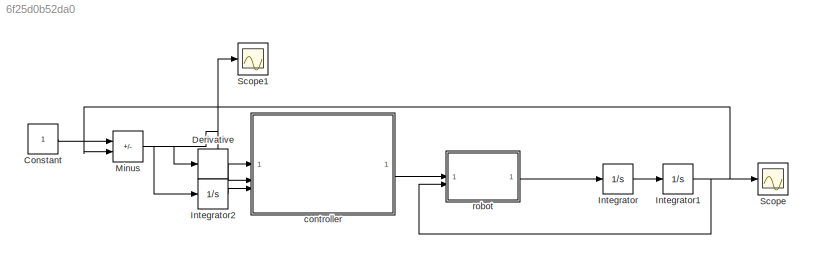
MODEL slx_6f25d0b52da0
KIND model
CONFIG AbsTol = auto
CONFIG EnableMultiTasking = off
CONFIG FixedStep = 0.01
CONFIG MaxStep = auto
CONFIG MinStep = auto
CONFIG RelTol = 1e-3
CONFIG SampleTimeConstraint = Unconstrained
CONFIG SolverName = ode1
CONFIG StartTime = 0.0
CONFIG StopTime = 10.0
BLOCK [Constant] Constant
BLOCK [Derivative] Derivative
BLOCK [Integrator] Integrator
BLOCK [Integrator] Integrator1
BLOCK [Integrator] Integrator2
BLOCK [Sum] Minus
  IconShape = rectangular
  Inputs = +-
BLOCK [Scope] Scope
  Floating = off
  NumInputPorts = 1
  ScopeSpecificationString = Simulink.scopes.TimeScopeBlockCfg('CurrentConfiguration', extmgr.ConfigurationSet(extmgr.Configuration('Core','General UI',true),extmgr.Configuration('Core','Source UI',true),extmgr.Configuration('Sources','WiredSimulink',true),extmgr.Configuration('Visuals','Time Domain',true,'SerializedDisplays',{struct('MinYLimReal','-0.12853','MaxYLimReal','1.15673','YLabelReal','','MinYLimMag','0.00000','MaxY...<+1420ch>
BLOCK [Scope] Scope1
  Floating = off
  NumInputPorts = 1
  ScopeSpecificationString = Simulink.scopes.TimeScopeBlockCfg('CurrentConfiguration', extmgr.ConfigurationSet(extmgr.Configuration('Core','General UI',true),extmgr.Configuration('Core','Source UI',true),extmgr.Configuration('Sources','WiredSimulink',true,'DataLoggingVariableName','ScopeData1'),extmgr.Configuration('Visuals','Time Domain',true,'SerializedDisplays',{struct('MinYLimReal','-0.15673','MaxYLimReal','1.12853','YLab...<+1453ch>
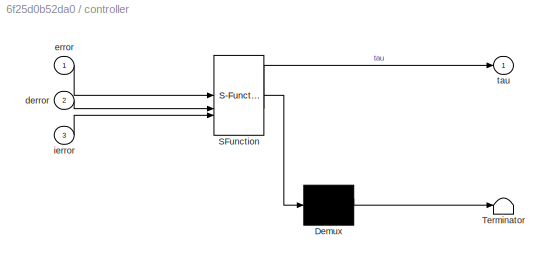
BLOCK [SubSystem] controller
  ErrorFcn = Stateflow.Translate.translate
  PermitHierarchicalResolution = ExplicitOnly
  SFBlockType = MATLAB Function
  TreatAsAtomicUnit = on
BLOCK [Demux] controller/ Demux 
  Outputs = 1
BLOCK [S-Function] controller/ SFunction 
  EnableBusSupport = on
  FunctionName = sf_sfun
  PortCounts = [3 2]
  SFcnIsStateOwnerBlock = off
  SFunctionDeploymentMode = off
  Tag = Stateflow S-Function 2
BLOCK [Terminator] controller/ Terminator 
BLOCK [Inport] controller/derror
  Port = 2
BLOCK [Inport] controller/error
BLOCK [Inport] controller/ierror
  Port = 3
BLOCK [Outport] controller/tau
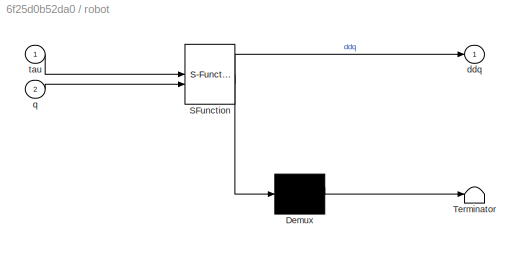
BLOCK [SubSystem] robot
  ErrorFcn = Stateflow.Translate.translate
  PermitHierarchicalResolution = ExplicitOnly
  SFBlockType = MATLAB Function
  TreatAsAtomicUnit = on
BLOCK [Demux] robot/ Demux 
  Outputs = 1
BLOCK [S-Function] robot/ SFunction 
  EnableBusSupport = on
  FunctionName = sf_sfun
  PortCounts = [2 2]
  SFcnIsStateOwnerBlock = off
  SFunctionDeploymentMode = off
  Tag = Stateflow S-Function 1
BLOCK [Terminator] robot/ Terminator 
BLOCK [Outport] robot/ddq
BLOCK [Inport] robot/q
  Port = 2
BLOCK [Inport] robot/tau
LINE Constant:1 -> Minus:1
LINE Derivative:1 -> controller:2
NET Integrator1:1 -> Minus:2, Scope:1, robot:2
LINE Integrator2:1 -> controller:3
LINE Integrator:1 -> Integrator1:1
NET Minus:1 -> Derivative:1, Integrator2:1, Scope1:1, controller:1
LINE controller:1 -> robot:1
LINE robot:1 -> Integrator:1
note: NET lines group one-source signal fan-out (src -> all destinations, sorted); 1:1 wires keep LINE
CHART controller states=1 transitions=1
  STATE_LABEL 'eML_blk_kernel()'
  STATE_LABEL 'SCRIPT:\nfunction tau = controller(error, derror, ierror)\n\nkp = 8;\n\nki = 5;\n\nkd = 0.7;\n\ntau = kp * error + kd * derror + ki * ierror;'
CHART robot states=1 transitions=1
  STATE_LABEL 'eML_blk_kernel()'
  STATE_LABEL 'SCRIPT:\nfunction ddq = robot(tau, q)\n\nI = 0.01;\n\nm = 0.5;\n\nlg = 0.2;\n\ng = 9.8;\n% g = 0;\nIbar = I + m * lg * lg;\n\ntauBar = tau - m * g * lg * cos(q);\n\nddq = tauBar / Ibar;\n'
CHART  states=0 transitions=0
CHART  states=0 transitions=0
